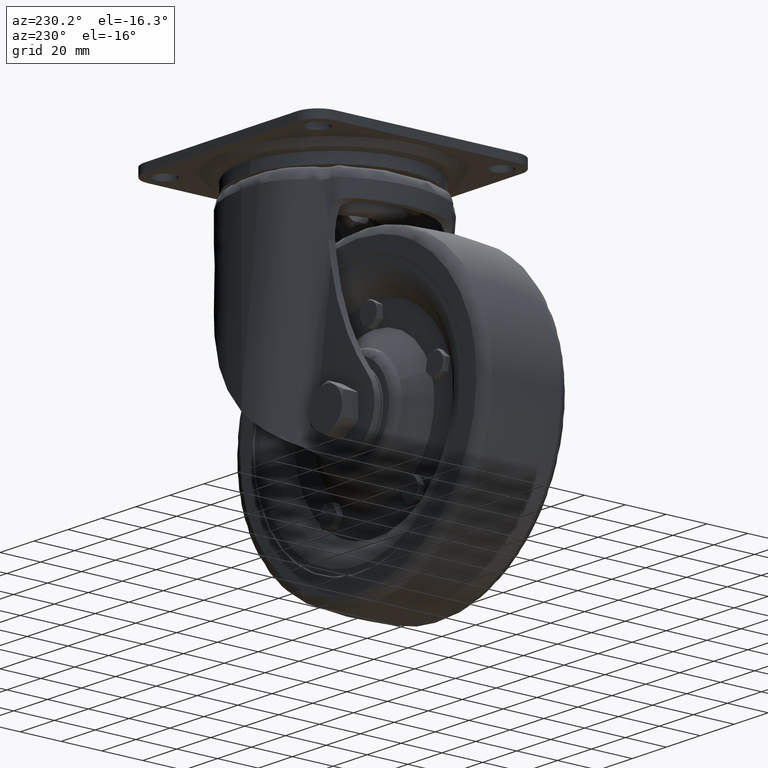
[diagram: clean part render]
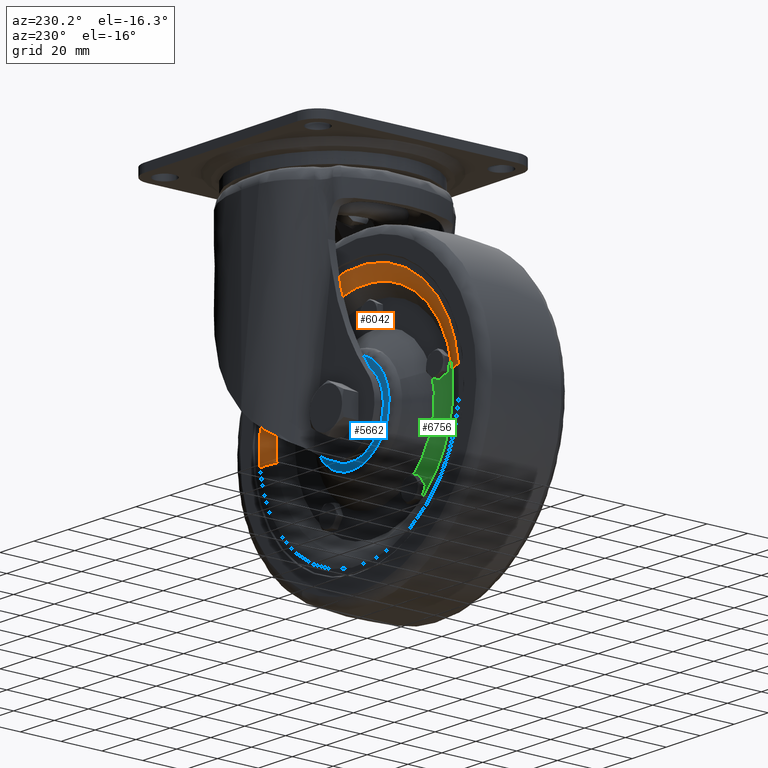
[diagram: same view with three faces highlighted in distinct colors, each labeled with its STEP entity id]
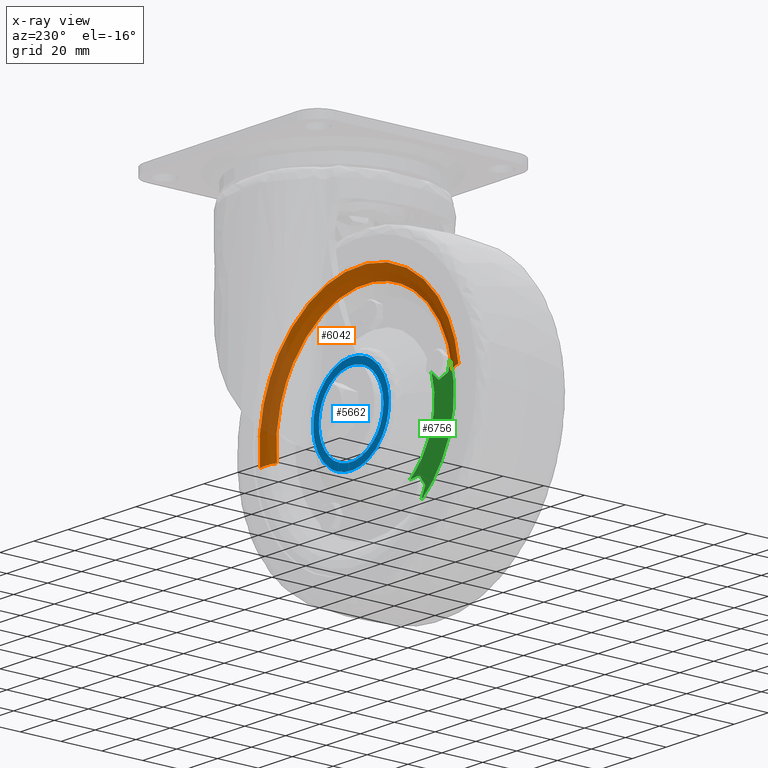
[diagram: x-ray of the same camera — body ghosted, the three highlighted faces saturated]
A machine part, auxiliary view with three faces highlighted in distinct colors.
The next image is the same camera in x-ray (body ghosted, the three faces saturated) — at least one of them is partly hidden behind the body in this view.
Their STEP definitions:

[orange] entity #6042 — the highlighted face is a freeform B-spline surface patch.
#5520=CARTESIAN_POINT('',(18.359889730222470,20.500000000000000,-119.372569641632300));
#5521=VERTEX_POINT('',#5520);
#5537=CARTESIAN_POINT('',(7.589399150005441,20.500000000000000,-77.424276395918042));
#5538=VERTEX_POINT('',#5537);
#5539=CARTESIAN_POINT('',(18.359889730222474,20.499999999999993,-119.372569641632280));
#5540=CARTESIAN_POINT('',(21.278896548763885,20.500000000000000,-96.266253573956163));
#5541=CARTESIAN_POINT('',(7.589399150005441,20.500000000000000,-77.424276395918042));
#5549=(BOUNDED_CURVE()B_SPLINE_CURVE(2,(#5539,#5540,#5541),.UNSPECIFIED.,.F.,.U.)B_SPLINE_CURVE_WITH_KNOTS((3,3),(0.379740687157108,0.500000000000000),.UNSPECIFIED.)CURVE()GEOMETRIC_REPRESENTATION_ITEM()RATIONAL_B_SPLINE_CURVE((0.853764031098899,0.859107451076606,1.0))REPRESENTATION_ITEM(''));
#5550=EDGE_CURVE('',#5521,#5538,#5549,.T.);
#5552=CARTESIAN_POINT('',(-98.359895452268347,20.500000000000000,-104.627430358367700));
#5553=VERTEX_POINT('',#5552);
#5554=CARTESIAN_POINT('',(7.589399150005441,20.500000000000000,-77.424276395918042));
#5555=CARTESIAN_POINT('',(-26.986324453858284,20.500000000000007,-29.834874384917203));
#5556=CARTESIAN_POINT('',(-74.575726464335474,20.500000000000000,-64.410597989068805));
#5557=CARTESIAN_POINT('',(-95.169499675709119,20.499999999999996,-79.372849676246432));
#5558=CARTESIAN_POINT('',(-98.359895452268347,20.499999999999993,-104.627430358367720));
#5566=(BOUNDED_CURVE()B_SPLINE_CURVE(2,(#5554,#5555,#5556,#5557,#5558),.UNSPECIFIED.,.F.,.U.)B_SPLINE_CURVE_WITH_KNOTS((3,2,3),(0.500000000000000,0.750000000000000,0.879740687157108),.UNSPECIFIED.)CURVE()GEOMETRIC_REPRESENTATION_ITEM()RATIONAL_B_SPLINE_CURVE((1.0,0.707106781186548,1.0,0.847999330109942,0.853764031098899))REPRESENTATION_ITEM(''));
#5567=EDGE_CURVE('',#5538,#5553,#5566,.T.);
#5882=CARTESIAN_POINT('',(-91.641207989981950,17.857909508752829,-105.476198048255500));
#5883=VERTEX_POINT('',#5882);
#5914=CARTESIAN_POINT('',(11.641202267936070,17.857909508752819,-118.523801951744500));
#5915=VERTEX_POINT('',#5914);
#5931=CARTESIAN_POINT('',(11.641202267936071,17.857909508752819,-118.523801951744420));
#5932=CARTESIAN_POINT('',(14.489211951369713,20.499999999566487,-118.883589278266470));
#5933=CARTESIAN_POINT('',(18.359889730222470,20.500000000000000,-119.372569641632270));
#5941=(BOUNDED_CURVE()B_SPLINE_CURVE(2,(#5931,#5932,#5933),.UNSPECIFIED.,.F.,.U.)B_SPLINE_CURVE_WITH_KNOTS((3,3),(-1.547021417599588,-0.456797857152890),.UNSPECIFIED.)CURVE()GEOMETRIC_REPRESENTATION_ITEM()RATIONAL_B_SPLINE_CURVE((0.925390761325084,0.861895910437252,0.924947443617392))REPRESENTATION_ITEM(''));
#5942=EDGE_CURVE('',#5915,#5521,#5941,.T.);
#5946=CARTESIAN_POINT('',(-91.641207989981950,17.857909508752822,-105.476198048255530));
#5947=CARTESIAN_POINT('',(-94.489217673415624,20.499999999566487,-105.116410721733500));
#5948=CARTESIAN_POINT('',(-98.359895452268347,20.500000000000000,-104.627430358367730));
#5956=(BOUNDED_CURVE()B_SPLINE_CURVE(2,(#5946,#5947,#5948),.UNSPECIFIED.,.F.,.U.)B_SPLINE_CURVE_WITH_KNOTS((3,3),(-1.547021417599588,-0.456797857152889),.UNSPECIFIED.)CURVE()GEOMETRIC_REPRESENTATION_ITEM()RATIONAL_B_SPLINE_CURVE((0.925390761325083,0.861895910437252,0.924947443617392))REPRESENTATION_ITEM(''));
#5957=EDGE_CURVE('',#5883,#5553,#5956,.T.);
#5962=CARTESIAN_POINT('',(11.200127425998778,17.608181556509098,-119.927467742815350));
#5963=CARTESIAN_POINT('',(11.290332690383174,17.608181556509098,-119.213419616240630));
#5964=CARTESIAN_POINT('',(17.872600670675720,17.608181556509102,-67.109408259298490));
#5965=CARTESIAN_POINT('',(-33.508996965524375,17.608181556509102,-60.618402363799916));
#5966=CARTESIAN_POINT('',(-84.890594601724501,17.608181556509102,-54.127396468301342));
#5967=CARTESIAN_POINT('',(-91.472862582016148,17.608181556509098,-106.231407825236360));
#5968=CARTESIAN_POINT('',(-91.563067846399690,17.608181556509095,-106.945455951804190));
#5969=CARTESIAN_POINT('',(14.239047314679478,20.649926738754772,-120.397992705456370));
#5970=CARTESIAN_POINT('',(14.334606600049076,20.649926738754786,-119.641563142718110));
#5971=CARTESIAN_POINT('',(21.307556888488165,20.649926738754782,-64.444983163293514));
#5972=CARTESIAN_POINT('',(-33.123731404620621,20.649926738754775,-57.568711706891193));
#5973=CARTESIAN_POINT('',(-87.555019697729463,20.649926738754782,-50.692440250488893));
#5974=CARTESIAN_POINT('',(-94.527969986167577,20.649926738754779,-105.889020229905940));
#5975=CARTESIAN_POINT('',(-94.623529271536256,20.649926738754779,-106.645449792636820));
#5976=CARTESIAN_POINT('',(18.511490095705046,20.493451650517393,-121.059507669182680));
#5977=CARTESIAN_POINT('',(18.614576643768483,20.493451650517400,-120.243493692369940));
#5978=CARTESIAN_POINT('',(26.136790443013631,20.493451650517393,-60.699045730256522));
#5979=CARTESIAN_POINT('',(-32.582083343876391,20.493451650517400,-53.281126213109964));
#5980=CARTESIAN_POINT('',(-91.300957130766463,20.493451650517393,-45.863206695963434));
#5981=CARTESIAN_POINT('',(-98.823170930010548,20.493451650517393,-105.407654658068760));
#5982=CARTESIAN_POINT('',(-98.926257478072984,20.493451650517390,-106.223668634873580));
#5990=(BOUNDED_SURFACE()B_SPLINE_SURFACE(2,2,((#5962,#5969,#5976),(#5963,#5970,#5977),(#5964,#5971,#5978),(#5965,#5972,#5979),(#5966,#5973,#5980),(#5967,#5974,#5981),(#5968,#5975,#5982)),.UNSPECIFIED.,.F.,.F.,.U.)B_SPLINE_SURFACE_WITH_KNOTS((3,1,2,1,3),(3,3),(0.0,1.961237252143253,100.023099858415310,198.084962464687290,200.046199716811200),(0.0,8.281328675158084),.UNSPECIFIED.)GEOMETRIC_REPRESENTATION_ITEM()RATIONAL_B_SPLINE_SURFACE(((0.942969267167812,0.865279172432048,0.942475951679636),(0.937509446863427,0.860269180103460,0.937018987686705),(0.659058611342288,0.604759571347710,0.658713824049731),(0.932049626559043,0.855259187774871,0.931562023693775),(0.659058611342288,0.604759571347710,0.658713824049731),(0.937509446863373,0.860269180103410,0.937018987686651),(0.942969267167704,0.865279172431950,0.942475951679528)))REPRESENTATION_ITEM('')SURFACE());
#5991=CARTESIAN_POINT('',(2.110665305794981,17.857909508588151,-81.404809436737750));
#5992=VERTEX_POINT('',#5991);
#5993=CARTESIAN_POINT('',(-68.729232323939101,17.857909508720908,-68.594868580568516));
#5994=VERTEX_POINT('',#5993);
#5995=CARTESIAN_POINT('',(2.110665305794981,17.857909508588151,-81.404809436737750));
#5996=CARTESIAN_POINT('',(-27.177858168076920,17.857909508630083,-41.092614271526990));
#5997=CARTESIAN_POINT('',(-68.729232323939101,17.857909508720905,-68.594868580568516));
#6005=(BOUNDED_CURVE()B_SPLINE_CURVE(2,(#5995,#5996,#5997),.UNSPECIFIED.,.F.,.U.)B_SPLINE_CURVE_WITH_KNOTS((3,3),(0.500000000000000,0.742354539724587),.UNSPECIFIED.)CURVE()GEOMETRIC_REPRESENTATION_ITEM()RATIONAL_B_SPLINE_CURVE((1.0,0.716063995064051,0.982633428428023))REPRESENTATION_ITEM(''));
#6006=EDGE_CURVE('',#5992,#5994,#6005,.T.);
#6007=ORIENTED_EDGE('',*,*,#6006,.T.);
#6008=CARTESIAN_POINT('',(-68.729232323939101,17.857909508720908,-68.594868580568516));
#6009=CARTESIAN_POINT('',(-69.676335516358208,17.857909508722230,-69.221742501926400));
#6010=CARTESIAN_POINT('',(-70.595193424432352,17.857909508723498,-69.889331833131251));
#6011=CARTESIAN_POINT('',(-88.818106791099069,17.857909508748829,-83.129053056791065));
#6012=CARTESIAN_POINT('',(-91.641207989981950,17.857909508752822,-105.476198048255530));
#6020=(BOUNDED_CURVE()B_SPLINE_CURVE(2,(#6008,#6009,#6010,#6011,#6012),.UNSPECIFIED.,.F.,.U.)B_SPLINE_CURVE_WITH_KNOTS((3,2,3),(0.742354539724587,0.750000000000000,0.879740687157143),.UNSPECIFIED.)CURVE()GEOMETRIC_REPRESENTATION_ITEM()RATIONAL_B_SPLINE_CURVE((0.982633428428023,0.991042786122496,1.0,0.847999330109901,0.853764031098902))REPRESENTATION_ITEM(''));
#6021=EDGE_CURVE('',#5994,#5883,#6020,.T.);
#6022=ORIENTED_EDGE('',*,*,#6021,.T.);
#6023=ORIENTED_EDGE('',*,*,#5957,.T.);
#6024=ORIENTED_EDGE('',*,*,#5567,.F.);
#6025=ORIENTED_EDGE('',*,*,#5550,.F.);
#6026=ORIENTED_EDGE('',*,*,#5942,.F.);
#6027=CARTESIAN_POINT('',(11.641202267936064,17.857909508752822,-118.523801951744420));
#6028=CARTESIAN_POINT('',(14.224158184383395,17.857909508670495,-98.077602433179351));
#6029=CARTESIAN_POINT('',(2.110665305794981,17.857909508588151,-81.404809436737750));
#6037=(BOUNDED_CURVE()B_SPLINE_CURVE(2,(#6027,#6028,#6029),.UNSPECIFIED.,.F.,.U.)B_SPLINE_CURVE_WITH_KNOTS((3,3),(0.379740687157143,0.500000000000000),.UNSPECIFIED.)CURVE()GEOMETRIC_REPRESENTATION_ITEM()RATIONAL_B_SPLINE_CURVE((0.853764031098902,0.859107451076647,1.0))REPRESENTATION_ITEM(''));
#6038=EDGE_CURVE('',#5915,#5992,#6037,.T.);
#6039=ORIENTED_EDGE('',*,*,#6038,.T.);
#6040=EDGE_LOOP('',(#6007,#6022,#6023,#6024,#6025,#6026,#6039));
#6041=FACE_OUTER_BOUND('',#6040,.T.);
#6042=ADVANCED_FACE('',(#6041),#5990,.T.);

[blue] entity #5662 — the highlighted face is a freeform B-spline surface patch.
#4591=CARTESIAN_POINT('',(-50.208695252440037,24.500000000000000,-95.975562383430642));
#4592=VERTEX_POINT('',#4591);
#4598=CARTESIAN_POINT('',(-24.628679811954498,24.500000000000000,-100.832080364227290));
#4599=VERTEX_POINT('',#4598);
#4600=CARTESIAN_POINT('',(-24.628679811954498,24.500000000000000,-100.832080364227290));
#4601=CARTESIAN_POINT('',(-35.134409567934448,24.499999999999996,-86.372183515748077));
#4602=CARTESIAN_POINT('',(-50.208695252440037,24.500000000000000,-95.975562383430642));
#4610=(BOUNDED_CURVE()B_SPLINE_CURVE(2,(#4600,#4601,#4602),.UNSPECIFIED.,.F.,.U.)B_SPLINE_CURVE_WITH_KNOTS((3,3),(0.500000000000000,0.739332962240220),.UNSPECIFIED.)CURVE()GEOMETRIC_REPRESENTATION_ITEM()RATIONAL_B_SPLINE_CURVE((1.0,0.719603993285214,0.976072041669454))REPRESENTATION_ITEM(''));
#4611=EDGE_CURVE('',#4599,#4592,#4610,.T.);
#4613=CARTESIAN_POINT('',(-29.791310469605861,24.500000000000000,-128.024437616569290));
#4614=VERTEX_POINT('',#4613);
#4615=CARTESIAN_POINT('',(-29.791310469605865,24.500000000000000,-128.024437616569340));
#4616=CARTESIAN_POINT('',(-29.301719620032543,24.499999999999993,-127.712533854294580));
#4617=CARTESIAN_POINT('',(-28.832083225250241,24.500000000000000,-127.371323049068490));
#4618=CARTESIAN_POINT('',(-13.460760176181795,24.500000000000004,-116.203403413295730));
#4619=CARTESIAN_POINT('',(-24.628679811954498,24.500000000000000,-100.832080364227290));
#4627=(BOUNDED_CURVE()B_SPLINE_CURVE(2,(#4615,#4616,#4617,#4618,#4619),.UNSPECIFIED.,.F.,.U.)B_SPLINE_CURVE_WITH_KNOTS((3,2,3),(0.239332962240220,0.250000000000000,0.500000000000000),.UNSPECIFIED.)CURVE()GEOMETRIC_REPRESENTATION_ITEM()RATIONAL_B_SPLINE_CURVE((0.976072041669454,0.987502787901333,1.0,0.707106781186548,1.0))REPRESENTATION_ITEM(''));
#4628=EDGE_CURVE('',#4614,#4599,#4627,.T.);
#4658=CARTESIAN_POINT('',(-55.371325910091400,24.500000000000000,-123.167919635772710));
#4659=VERTEX_POINT('',#4658);
#4660=CARTESIAN_POINT('',(-55.371325910091400,24.500000000000000,-123.167919635772710));
#4661=CARTESIAN_POINT('',(-44.865596154111472,24.499999999999993,-137.627816484251920));
#4662=CARTESIAN_POINT('',(-29.791310469605872,24.500000000000007,-128.024437616569370));
#4670=(BOUNDED_CURVE()B_SPLINE_CURVE(2,(#4660,#4661,#4662),.UNSPECIFIED.,.F.,.U.)B_SPLINE_CURVE_WITH_KNOTS((3,3),(0.0,0.239332962240220),.UNSPECIFIED.)CURVE()GEOMETRIC_REPRESENTATION_ITEM()RATIONAL_B_SPLINE_CURVE((1.0,0.719603993285214,0.976072041669454))REPRESENTATION_ITEM(''));
#4671=EDGE_CURVE('',#4659,#4614,#4670,.T.);
#4673=CARTESIAN_POINT('',(-50.208695252440037,24.500000000000000,-95.975562383430642));
#4674=CARTESIAN_POINT('',(-50.698286102013363,24.499999999999993,-96.287466145705480));
#4675=CARTESIAN_POINT('',(-51.167922496795647,24.500000000000000,-96.628676950931549));
#4676=CARTESIAN_POINT('',(-66.539245545864105,24.500000000000004,-107.796596586704250));
#4677=CARTESIAN_POINT('',(-55.371325910091400,24.500000000000000,-123.167919635772710));
#4685=(BOUNDED_CURVE()B_SPLINE_CURVE(2,(#4673,#4674,#4675,#4676,#4677),.UNSPECIFIED.,.F.,.U.)B_SPLINE_CURVE_WITH_KNOTS((3,2,3),(0.739332962240220,0.750000000000000,1.0),.UNSPECIFIED.)CURVE()GEOMETRIC_REPRESENTATION_ITEM()RATIONAL_B_SPLINE_CURVE((0.976072041669454,0.987502787901333,1.0,0.707106781186548,1.0))REPRESENTATION_ITEM(''));
#4686=EDGE_CURVE('',#4592,#4659,#4685,.T.);
#5585=CARTESIAN_POINT('',(-74.337162260527862,24.500000000000000,-106.561651883160390));
#5586=CARTESIAN_POINT('',(-34.561411719758638,24.500000000000000,-77.662878233433872));
#5587=CARTESIAN_POINT('',(-45.438592562725191,24.500000000000000,-146.337121708182200));
#5588=CARTESIAN_POINT('',(-5.662842021955967,24.500000000000000,-117.438348058455700));
#5589=B_SPLINE_SURFACE_WITH_KNOTS('',1,1,((#5585,#5587),(#5586,#5588)),.UNSPECIFIED.,.F.,.F.,.U.,(2,2),(2,2),(0.0,49.165531025672863),(0.0,49.165184041930168),.UNSPECIFIED.);
#5590=CARTESIAN_POINT('',(-52.211916688464342,24.499999999999869,-93.281247544747657));
#5591=VERTEX_POINT('',#5590);
#5592=CARTESIAN_POINT('',(-58.081532868742940,24.500000000000000,-125.137000203132600));
#5593=VERTEX_POINT('',#5592);
#5594=CARTESIAN_POINT('',(-52.211916688464342,24.499999999999869,-93.281247544747657));
#5595=CARTESIAN_POINT('',(-52.682469314180459,24.499999999999865,-93.588231053175264));
#5596=CARTESIAN_POINT('',(-53.137003434422972,24.499999999999869,-93.918469424724123));
#5597=CARTESIAN_POINT('',(-71.218533252355371,24.499999999999936,-107.055469918768300));
#5598=CARTESIAN_POINT('',(-58.081532868742940,24.500000000000000,-125.137000203132600));
#5606=(BOUNDED_CURVE()B_SPLINE_CURVE(2,(#5594,#5595,#5596,#5597,#5598),.UNSPECIFIED.,.F.,.U.)B_SPLINE_CURVE_WITH_KNOTS((3,2,3),(0.741203951656008,0.750000000000000,1.0),.UNSPECIFIED.)CURVE()GEOMETRIC_REPRESENTATION_ITEM()RATIONAL_B_SPLINE_CURVE((0.980114737820410,0.989694788350758,1.0,0.707106781186548,1.0))REPRESENTATION_ITEM(''));
#5607=EDGE_CURVE('',#5591,#5593,#5606,.T.);
#5608=ORIENTED_EDGE('',*,*,#5607,.F.);
#5609=CARTESIAN_POINT('',(-21.918472853302958,24.500000000000000,-98.862999796867371));
#5610=VERTEX_POINT('',#5609);
#5611=CARTESIAN_POINT('',(-21.918472853302958,24.500000000000000,-98.862999796867371));
#5612=CARTESIAN_POINT('',(-34.411192470123922,24.499999999999940,-81.668245931691132));
#5613=CARTESIAN_POINT('',(-52.211916688464342,24.499999999999869,-93.281247544747657));
#5621=(BOUNDED_CURVE()B_SPLINE_CURVE(2,(#5611,#5612,#5613),.UNSPECIFIED.,.F.,.U.)B_SPLINE_CURVE_WITH_KNOTS((3,3),(0.500000000000000,0.741203951656008),.UNSPECIFIED.)CURVE()GEOMETRIC_REPRESENTATION_ITEM()RATIONAL_B_SPLINE_CURVE((1.0,0.717411992835790,0.980114737820410))REPRESENTATION_ITEM(''));
#5622=EDGE_CURVE('',#5610,#5591,#5621,.T.);
#5623=ORIENTED_EDGE('',*,*,#5622,.F.);
#5624=CARTESIAN_POINT('',(-27.788089033581560,24.499999999999869,-130.718752455252290));
#5625=VERTEX_POINT('',#5624);
#5626=CARTESIAN_POINT('',(-27.788089033581556,24.499999999999869,-130.718752455252340));
#5627=CARTESIAN_POINT('',(-27.317536407865447,24.499999999999865,-130.411768946824710));
#5628=CARTESIAN_POINT('',(-26.863002287622951,24.499999999999869,-130.081530575275910));
#5629=CARTESIAN_POINT('',(-8.781472469690527,24.499999999999936,-116.944530081231720));
#5630=CARTESIAN_POINT('',(-21.918472853302958,24.500000000000000,-98.862999796867371));
#5638=(BOUNDED_CURVE()B_SPLINE_CURVE(2,(#5626,#5627,#5628,#5629,#5630),.UNSPECIFIED.,.F.,.U.)B_SPLINE_CURVE_WITH_KNOTS((3,2,3),(0.241203951656008,0.250000000000000,0.500000000000000),.UNSPECIFIED.)CURVE()GEOMETRIC_REPRESENTATION_ITEM()RATIONAL_B_SPLINE_CURVE((0.980114737820410,0.989694788350758,1.0,0.707106781186548,1.0))REPRESENTATION_ITEM(''));
#5639=EDGE_CURVE('',#5625,#5610,#5638,.T.);
#5640=ORIENTED_EDGE('',*,*,#5639,.F.);
#5641=CARTESIAN_POINT('',(-58.081532868742940,24.500000000000000,-125.137000203132600));
#5642=CARTESIAN_POINT('',(-45.588813251921970,24.499999999999925,-142.331754068308840));
#5643=CARTESIAN_POINT('',(-27.788089033581556,24.499999999999869,-130.718752455252340));
#5651=(BOUNDED_CURVE()B_SPLINE_CURVE(2,(#5641,#5642,#5643),.UNSPECIFIED.,.F.,.U.)B_SPLINE_CURVE_WITH_KNOTS((3,3),(0.0,0.241203951656008),.UNSPECIFIED.)CURVE()GEOMETRIC_REPRESENTATION_ITEM()RATIONAL_B_SPLINE_CURVE((1.0,0.717411992835790,0.980114737820410))REPRESENTATION_ITEM(''));
#5652=EDGE_CURVE('',#5593,#5625,#5651,.T.);
#5653=ORIENTED_EDGE('',*,*,#5652,.F.);
#5654=EDGE_LOOP('',(#5608,#5623,#5640,#5653));
#5655=FACE_OUTER_BOUND('',#5654,.T.);
#5656=ORIENTED_EDGE('',*,*,#4611,.T.);
#5657=ORIENTED_EDGE('',*,*,#4686,.T.);
#5658=ORIENTED_EDGE('',*,*,#4671,.T.);
#5659=ORIENTED_EDGE('',*,*,#4628,.T.);
#5660=EDGE_LOOP('',(#5656,#5657,#5658,#5659));
#5661=FACE_BOUND('',#5660,.T.);
#5662=ADVANCED_FACE('',(#5655,#5661),#5589,.T.);

[green] entity #6756 — the highlighted face is a freeform B-spline surface patch.
#6564=CARTESIAN_POINT('',(-84.484247759126674,13.000000070073920,-97.546192420169845));
#6565=VERTEX_POINT('',#6564);
#6573=CARTESIAN_POINT('',(-83.283868827398209,13.0,-103.193530445063200));
#6574=VERTEX_POINT('',#6573);
#6580=CARTESIAN_POINT('',(-84.484247759126674,13.000000070073920,-97.546192420169845));
#6581=CARTESIAN_POINT('',(-83.283868827398209,13.0,-103.193530445063200));
#6582=QUASI_UNIFORM_CURVE('',1,(#6580,#6581),.UNSPECIFIED.,.F.,.U.);
#6583=EDGE_CURVE('',#6565,#6574,#6582,.T.);
#6616=CARTESIAN_POINT('',(-73.502392784281852,12.999999664844699,-101.114413563312890));
#6617=VERTEX_POINT('',#6616);
#6645=CARTESIAN_POINT('',(-77.792941839975867,13.0,-104.977640516634690));
#6646=VERTEX_POINT('',#6645);
#6655=CARTESIAN_POINT('',(-77.792941839975867,13.0,-104.977640516634690));
#6656=CARTESIAN_POINT('',(-73.502392784281852,12.999999664844699,-101.114413563312890));
#6657=QUASI_UNIFORM_CURVE('',1,(#6655,#6656),.UNSPECIFIED.,.F.,.U.);
#6658=EDGE_CURVE('',#6646,#6617,#6657,.T.);
#6689=CARTESIAN_POINT('',(-83.283868827398209,13.0,-103.193530445063200));
#6690=CARTESIAN_POINT('',(-77.792941839975867,13.0,-104.977640516634690));
#6691=QUASI_UNIFORM_CURVE('',1,(#6689,#6690),.UNSPECIFIED.,.F.,.U.);
#6692=EDGE_CURVE('',#6574,#6646,#6691,.T.);
#6697=CARTESIAN_POINT('',(-102.662740918357700,13.0,-107.524903010172910));
#6698=CARTESIAN_POINT('',(-79.475676353097640,13.0,-90.678514912826216));
#6699=CARTESIAN_POINT('',(-68.854171442188601,13.0,-154.058407923696900));
#6700=CARTESIAN_POINT('',(-45.667106876928528,13.0,-137.212019826350200));
#6701=B_SPLINE_SURFACE_WITH_KNOTS('',1,1,((#6697,#6699),(#6698,#6700)),.UNSPECIFIED.,.F.,.F.,.U.,(2,2),(2,2),(0.0,28.660787710569931),(0.0,57.518574720901299),.UNSPECIFIED.);
#6702=CARTESIAN_POINT('',(-67.492778400547763,13.0,-149.840558807218090));
#6703=VERTEX_POINT('',#6702);
#6704=CARTESIAN_POINT('',(-84.484247759126674,13.000000070073920,-97.546192420169845));
#6705=CARTESIAN_POINT('',(-94.985553590352481,13.000000000000004,-129.865888166564050));
#6706=CARTESIAN_POINT('',(-67.492778400547763,13.0,-149.840558807218090));
#6714=(BOUNDED_CURVE()B_SPLINE_CURVE(2,(#6704,#6705,#6706),.UNSPECIFIED.,.F.,.U.)CURVE()GEOMETRIC_REPRESENTATION_ITEM()QUASI_UNIFORM_CURVE()RATIONAL_B_SPLINE_CURVE((1.0,0.809016994374947,1.0))REPRESENTATION_ITEM(''));
#6715=EDGE_CURVE('',#6565,#6703,#6714,.T.);
#6716=ORIENTED_EDGE('',*,*,#6715,.F.);
#6717=ORIENTED_EDGE('',*,*,#6583,.T.);
#6718=ORIENTED_EDGE('',*,*,#6692,.T.);
#6719=ORIENTED_EDGE('',*,*,#6658,.T.);
#6720=CARTESIAN_POINT('',(-60.705618613791273,12.999999664844699,-140.498835045302800));
#6721=VERTEX_POINT('',#6720);
#6722=CARTESIAN_POINT('',(-73.502392784281852,12.999999664844699,-101.114413563312890));
#6723=CARTESIAN_POINT('',(-81.411233930112672,12.999999832422349,-125.455324641140890));
#6724=CARTESIAN_POINT('',(-60.705618613791273,12.999999664844699,-140.498835045302800));
#6732=(BOUNDED_CURVE()B_SPLINE_CURVE(2,(#6722,#6723,#6724),.UNSPECIFIED.,.F.,.U.)CURVE()GEOMETRIC_REPRESENTATION_ITEM()QUASI_UNIFORM_CURVE()RATIONAL_B_SPLINE_CURVE((1.0,0.809016994374947,1.0))REPRESENTATION_ITEM(''));
#6733=EDGE_CURVE('',#6617,#6721,#6732,.T.);
#6734=ORIENTED_EDGE('',*,*,#6733,.T.);
#6735=CARTESIAN_POINT('',(-66.447493731681249,13.0,-139.895339827674690));
#6736=VERTEX_POINT('',#6735);
#6737=CARTESIAN_POINT('',(-60.705618613791273,12.999999664844699,-140.498835045302800));
#6738=CARTESIAN_POINT('',(-66.447493731681249,13.0,-139.895339827674690));
#6739=QUASI_UNIFORM_CURVE('',1,(#6737,#6738),.UNSPECIFIED.,.F.,.U.);
#6740=EDGE_CURVE('',#6721,#6736,#6739,.T.);
#6741=ORIENTED_EDGE('',*,*,#6740,.T.);
#6742=CARTESIAN_POINT('',(-69.841073946079320,13.0,-144.566201078595700));
#6743=VERTEX_POINT('',#6742);
#6744=CARTESIAN_POINT('',(-66.447493731681249,13.0,-139.895339827674690));
#6745=CARTESIAN_POINT('',(-69.841073946079320,13.0,-144.566201078595700));
#6746=QUASI_UNIFORM_CURVE('',1,(#6744,#6745),.UNSPECIFIED.,.F.,.U.);
#6747=EDGE_CURVE('',#6736,#6743,#6746,.T.);
#6748=ORIENTED_EDGE('',*,*,#6747,.T.);
#6749=CARTESIAN_POINT('',(-69.841073946079320,13.0,-144.566201078595700));
#6750=CARTESIAN_POINT('',(-67.492778400547763,13.0,-149.840558807218090));
#6751=QUASI_UNIFORM_CURVE('',1,(#6749,#6750),.UNSPECIFIED.,.F.,.U.);
#6752=EDGE_CURVE('',#6743,#6703,#6751,.T.);
#6753=ORIENTED_EDGE('',*,*,#6752,.T.);
#6754=EDGE_LOOP('',(#6716,#6717,#6718,#6719,#6734,#6741,#6748,#6753));
#6755=FACE_OUTER_BOUND('',#6754,.T.);
#6756=ADVANCED_FACE('',(#6755),#6701,.T.);